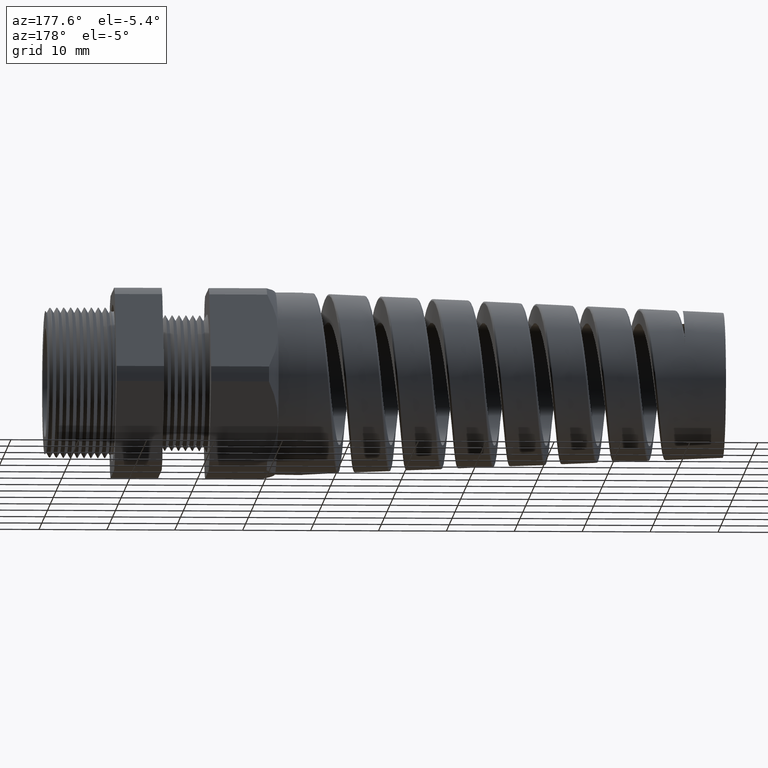
[diagram: clean part render]
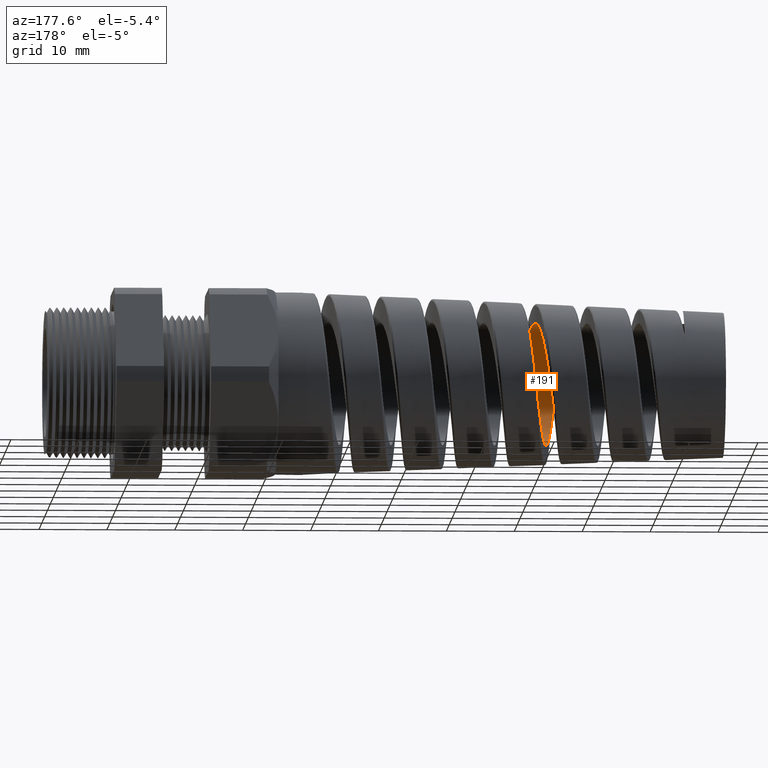
[diagram: same view with one face highlighted and labeled with its STEP entity id]
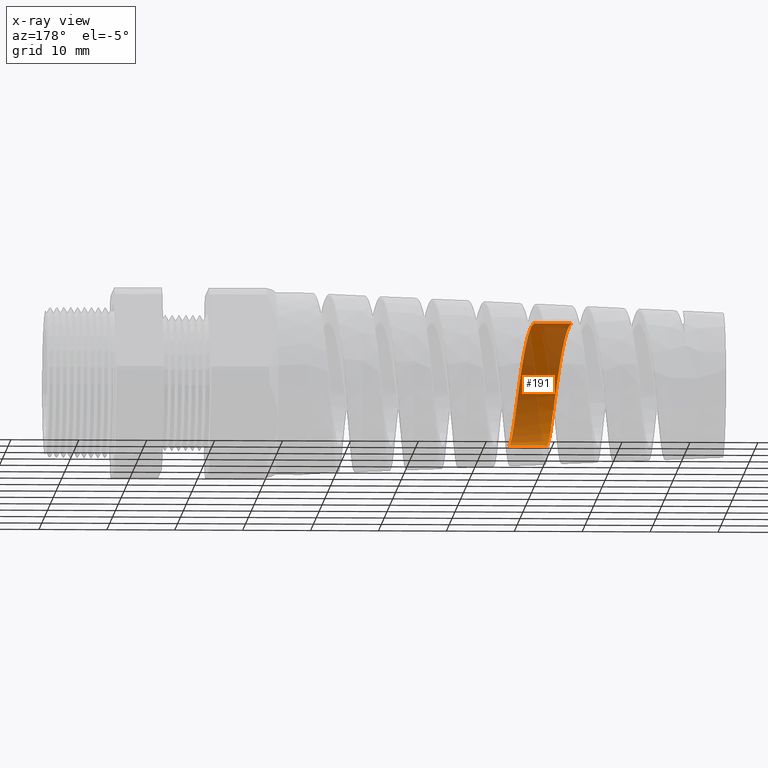
[diagram: x-ray of the same camera — body ghosted, the highlighted face saturated]
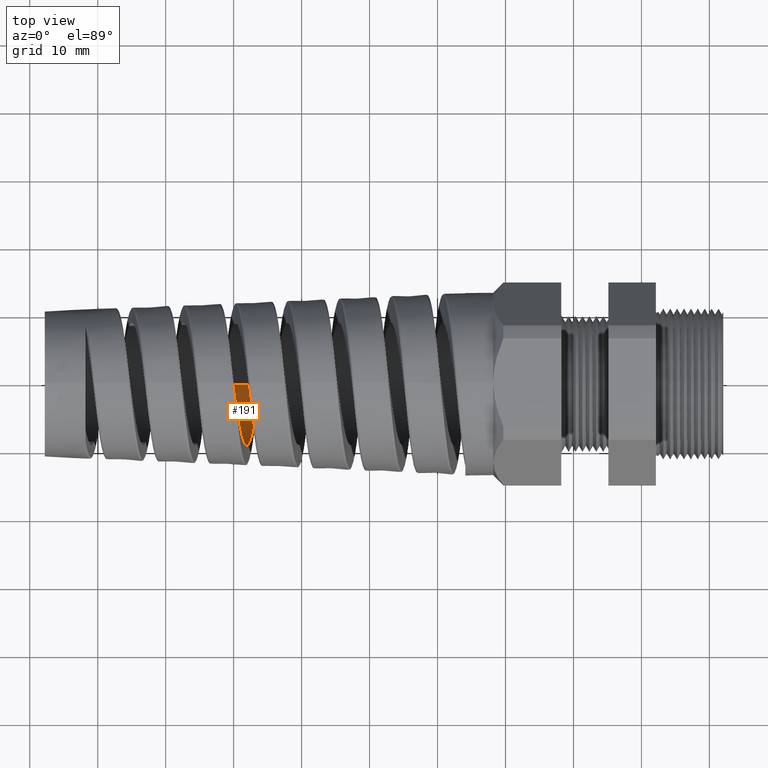
[diagram: same view with one face highlighted and labeled with its STEP entity id]
A machine part, auxiliary view. The second image highlights one B-rep face of the part: STEP entity #191.
The next image is the same camera in x-ray: the body ghosted, the highlighted face saturated — about 63% of this face is hidden behind the body in this view.
A second angle (top view) of the same face is appended — the face is thin or edge-on in the first view.
In plain terms, the highlighted cylindrical surface (partial cylindrical patch) has radius 9.0424 mm, axis along (1, 0, 0).
Its self-contained STEP definition (entity closure, byte-faithful):
#108 = EDGE_LOOP ( 'NONE', ( #109, #113, #116, #119 ) ) ;
#109 = ORIENTED_EDGE ( 'NONE', *, *, #110, .T. ) ;
#110 = EDGE_CURVE ( 'NONE', #111, #112, #1306, .T. ) ;
#111 = VERTEX_POINT ( 'NONE', #1307 ) ;
#112 = VERTEX_POINT ( 'NONE', #1305 ) ;
#113 = ORIENTED_EDGE ( 'NONE', *, *, #114, .T. ) ;
#114 = EDGE_CURVE ( 'NONE', #112, #115, #1334, .T. ) ;
#115 = VERTEX_POINT ( 'NONE', #1330 ) ;
#116 = ORIENTED_EDGE ( 'NONE', *, *, #117, .T. ) ;
#117 = EDGE_CURVE ( 'NONE', #115, #118, #1410, .T. ) ;
#118 = VERTEX_POINT ( 'NONE', #1411 ) ;
#119 = ORIENTED_EDGE ( 'NONE', *, *, #120, .F. ) ;
#120 = EDGE_CURVE ( 'NONE', #111, #118, #1441, .T. ) ;
#191 = ADVANCED_FACE ( 'NONE', ( #2035 ), #2033, .F. ) ;
#1288 = CARTESIAN_POINT ( 'NONE',  ( -2.865878385319923000, -0.2830066676051814500, -0.2172233800236530200 ) ) ;
#1289 = CARTESIAN_POINT ( 'NONE',  ( -2.862784802337007100, -0.2682974846537566300, -0.2351490093649006900 ) ) ;
#1290 = CARTESIAN_POINT ( 'NONE',  ( -2.858100982522131500, -0.2436008963558304900, -0.2598658356033796100 ) ) ;
#1291 = CARTESIAN_POINT ( 'NONE',  ( -2.856524093153812100, -0.2348779907034478100, -0.2677788872361999700 ) ) ;
#1292 = CARTESIAN_POINT ( 'NONE',  ( -2.853383558245191000, -0.2167677386200083100, -0.2826392585256234400 ) ) ;
#1293 = CARTESIAN_POINT ( 'NONE',  ( -2.851824260504471900, -0.2074106298001680300, -0.2895712623736018100 ) ) ;
#1294 = CARTESIAN_POINT ( 'NONE',  ( -2.847156549222540800, -0.1784605498097791600, -0.3089119187544660000 ) ) ;
#1295 = CARTESIAN_POINT ( 'NONE',  ( -2.844059307946899700, -0.1579969302065872300, -0.3198789223953460400 ) ) ;
#1296 = CARTESIAN_POINT ( 'NONE',  ( -2.839345516245098900, -0.1255140943001147600, -0.3333460677267697800 ) ) ;
#1297 = CARTESIAN_POINT ( 'NONE',  ( -2.837770354338129400, -0.1144367156026305600, -0.3373066413484552300 ) ) ;
#1298 = CARTESIAN_POINT ( 'NONE',  ( -2.834648988095228800, -0.09215473982740286800, -0.3440625467891505500 ) ) ;
#1299 = CARTESIAN_POINT ( 'NONE',  ( -2.833095092370364800, -0.08089808150880928300, -0.3468802431238151600 ) ) ;
#1300 = CARTESIAN_POINT ( 'NONE',  ( -2.829986602782412300, -0.05815815462563546400, -0.3514086392107963500 ) ) ;
#1301 = CARTESIAN_POINT ( 'NONE',  ( -2.828432061218223700, -0.04667488061391102100, -0.3531193474797285100 ) ) ;
#1302 = CARTESIAN_POINT ( 'NONE',  ( -2.825307539450896000, -0.02348010185575789500, -0.3554159575225558400 ) ) ;
#1303 = CARTESIAN_POINT ( 'NONE',  ( -2.823728789182552200, -0.01170299271775862200, -0.3560000000000159700 ) ) ;
#1304 = CARTESIAN_POINT ( 'NONE',  ( -2.822159956129014700, 4.852839836151481800E-013, -0.3560000000000000900 ) ) ;
#1305 = CARTESIAN_POINT ( 'NONE',  ( -2.972091208868782100, -7.629645937617727200E-013, 0.3559999999999998200 ) ) ;
#1306 = B_SPLINE_CURVE_WITH_KNOTS ( 'NONE', 3,
 ( #1304, #1303, #1302, #1301, #1300, #1299, #1298, #1297, #1296, #1295, #1294, #1293, #1292, #1291, #1290, #1289, #1288, #1366, #1365, #1364, #1363, #1362, #1361, #1360, #1359, #1358, #1357, #1356, #1355, #1354, #1353, #1352, #1351, #1350, #1349, #1348, #1347, #1346, #1345, #1344, #1343, #1342, #1341, #1340, #1339, #1338, #1337, #1336, #1335 ),
 .UNSPECIFIED., .F., .F.,
 ( 4, 2, 2, 2, 2, 2, 2, 2, 2, 2, 2, 2, 2, 1, 2, 2, 2, 2, 2, 2, 2, 2, 2, 2, 4 ),
 ( 0.2840777852845404200, 0.2849690767866405700, 0.2858603682887407800, 0.2867516597908409400, 0.2876429512929411500, 0.2894255342971414600, 0.2903168257992416700, 0.2912081173013418300, 0.2929907003055422000, 0.2938819918076423500, 0.2947732833097425600, 0.2965558663139429300, 0.2974471578160430800, 0.2983384493181432400, 0.2992297408202434500, 0.3001210323223436100, 0.3019036153265439700, 0.3036861983307443400, 0.3054687813349447100, 0.3063600728370448600, 0.3072513643391450700, 0.3090339473433453800, 0.3108165303475457500, 0.3117078218496459600, 0.3125991133517461200 ),
 .UNSPECIFIED. ) ;
#1307 = CARTESIAN_POINT ( 'NONE',  ( -2.822159956129014700, 4.852839836151481800E-013, -0.3560000000000000900 ) ) ;
#1330 = CARTESIAN_POINT ( 'NONE',  ( -2.755331627841042200, 3.409837175029362200E-013, 0.3559999999999998200 ) ) ;
#1331 = DIRECTION ( 'NONE',  ( 1.000000000000000000, 0.0000000000000000000, 0.0000000000000000000 ) ) ;
#1332 = VECTOR ( 'NONE', #1331, 39.37007874015748100 ) ;
#1333 = CARTESIAN_POINT ( 'NONE',  ( 0.09602717987635048200, 4.359742604964577000E-017, 0.3559999999999999800 ) ) ;
#1334 = LINE ( 'NONE', #1333, #1332 ) ;
#1335 = CARTESIAN_POINT ( 'NONE',  ( -2.972091208868782100, -7.629645937617727200E-013, 0.3559999999999998200 ) ) ;
#1336 = CARTESIAN_POINT ( 'NONE',  ( -2.970525152840745300, -0.01168124141202175000, 0.3559999999999753400 ) ) ;
#1337 = CARTESIAN_POINT ( 'NONE',  ( -2.968944116503309700, -0.02347459733471722900, 0.3554169174184096900 ) ) ;
#1338 = CARTESIAN_POINT ( 'NONE',  ( -2.965814709255707000, -0.04670545973800501600, 0.3531159043966914400 ) ) ;
#1339 = CARTESIAN_POINT ( 'NONE',  ( -2.964258941728634200, -0.05819831331059183800, 0.3514020581831998600 ) ) ;
#1340 = CARTESIAN_POINT ( 'NONE',  ( -2.959595789027008800, -0.09231341587968282200, 0.3446041699094373700 ) ) ;
#1341 = CARTESIAN_POINT ( 'NONE',  ( -2.956486546336027900, -0.1146206225884433700, 0.3378611015848146400 ) ) ;
#1342 = CARTESIAN_POINT ( 'NONE',  ( -2.950186963967742500, -0.1580286800207312300, 0.3198670776706663600 ) ) ;
#1343 = CARTESIAN_POINT ( 'NONE',  ( -2.947087444884256300, -0.1785052216045564800, 0.3088851482184418200 ) ) ;
#1344 = CARTESIAN_POINT ( 'NONE',  ( -2.942422707288137900, -0.2074372475588239500, 0.2895519393092096900 ) ) ;
#1345 = CARTESIAN_POINT ( 'NONE',  ( -2.940865406020641200, -0.2167820081310139800, 0.2826273681304811700 ) ) ;
#1346 = CARTESIAN_POINT ( 'NONE',  ( -2.937730788968287300, -0.2348571145896957700, 0.2677961986143194700 ) ) ;
#1347 = CARTESIAN_POINT ( 'NONE',  ( -2.936150230374905400, -0.2436004940152626500, 0.2598669793929389000 ) ) ;
#1348 = CARTESIAN_POINT ( 'NONE',  ( -2.931459263061313400, -0.2683322140440266300, 0.2351127677506923400 ) ) ;
#1349 = CARTESIAN_POINT ( 'NONE',  ( -2.928365735327072900, -0.2830368689626215900, 0.2171808167604285800 ) ) ;
#1350 = CARTESIAN_POINT ( 'NONE',  ( -2.922127371356423500, -0.3088973778632578300, 0.1784930987744197100 ) ) ;
#1351 = CARTESIAN_POINT ( 'NONE',  ( -2.918964355415452500, -0.3200659542992223000, 0.1575856324041027000 ) ) ;
#1352 = CARTESIAN_POINT ( 'NONE',  ( -2.912737216566430900, -0.3378279165455079200, 0.1146636186599489700 ) ) ;
#1353 = CARTESIAN_POINT ( 'NONE',  ( -2.909641702390816800, -0.3445783814419102800, 0.09246256943013446400 ) ) ;
#1354 = CARTESIAN_POINT ( 'NONE',  ( -2.904936136905885000, -0.3514321651738083200, 0.05803731736509156600 ) ) ;
#1355 = CARTESIAN_POINT ( 'NONE',  ( -2.903356732004803900, -0.3531595934096324900, 0.04636988393200223300 ) ) ;
#1356 = CARTESIAN_POINT ( 'NONE',  ( -2.900231373365270500, -0.3554364292209847300, 0.02316914620266131600 ) ) ;
#1357 = CARTESIAN_POINT ( 'NONE',  ( -2.897121973242576600, -0.3565649835026404900, -2.550830066267088100E-005 ) ) ;
#1358 = CARTESIAN_POINT ( 'NONE',  ( -2.894014912200638000, -0.3554336124638134400, -0.02320427457250626900 ) ) ;
#1359 = CARTESIAN_POINT ( 'NONE',  ( -2.890894124714374700, -0.3531586567001756500, -0.04637299241196394400 ) ) ;
#1360 = CARTESIAN_POINT ( 'NONE',  ( -2.889319704983560400, -0.3514382680851753600, -0.05800518322005763400 ) ) ;
#1361 = CARTESIAN_POINT ( 'NONE',  ( -2.884604350843289000, -0.3445713148247087600, -0.09250102280716600300 ) ) ;
#1362 = CARTESIAN_POINT ( 'NONE',  ( -2.881506471784186700, -0.3378097490024638500, -0.1147137128136454100 ) ) ;
#1363 = CARTESIAN_POINT ( 'NONE',  ( -2.876839657506196500, -0.3244946796705542300, -0.1468804564013004600 ) ) ;
#1364 = CARTESIAN_POINT ( 'NONE',  ( -2.875280752038986700, -0.3195237845776362500, -0.1574093010172430700 ) ) ;
#1365 = CARTESIAN_POINT ( 'NONE',  ( -2.872141016803078500, -0.3084883377037628300, -0.1780676345053247000 ) ) ;
#1366 = CARTESIAN_POINT ( 'NONE',  ( -2.870563512169979100, -0.3024288244416843400, -0.1881714612561995500 ) ) ;
#1367 = CARTESIAN_POINT ( 'NONE',  ( -2.617744064766182300, -0.09201651564152256400, -0.3441016804169604900 ) ) ;
#1368 = CARTESIAN_POINT ( 'NONE',  ( -2.620885179131395800, -0.1144208192818265400, -0.3373142180985825300 ) ) ;
#1369 = CARTESIAN_POINT ( 'NONE',  ( -2.622465586541800100, -0.1255229974138698500, -0.3333403825567192700 ) ) ;
#1370 = CARTESIAN_POINT ( 'NONE',  ( -2.627157493241159000, -0.1578235711876450600, -0.3199547694110336200 ) ) ;
#1371 = CARTESIAN_POINT ( 'NONE',  ( -2.630254136587428300, -0.1782766678096466600, -0.3090238184869429900 ) ) ;
#1372 = CARTESIAN_POINT ( 'NONE',  ( -2.634940899214454700, -0.2073295139863165800, -0.2896308776694713200 ) ) ;
#1373 = CARTESIAN_POINT ( 'NONE',  ( -2.636517835862771000, -0.2167846321346852700, -0.2826266461793834900 ) ) ;
#1374 = CARTESIAN_POINT ( 'NONE',  ( -2.639663478947947600, -0.2349065150949841400, -0.2677542287739024300 ) ) ;
#1375 = CARTESIAN_POINT ( 'NONE',  ( -2.641225078623080900, -0.2435353116310456400, -0.2599256022618669500 ) ) ;
#1376 = CARTESIAN_POINT ( 'NONE',  ( -2.645898458052778700, -0.2681601926109005700, -0.2352980620162093400 ) ) ;
#1377 = CARTESIAN_POINT ( 'NONE',  ( -2.648998164412504200, -0.2829065917316326800, -0.2173680493795665000 ) ) ;
#1378 = CARTESIAN_POINT ( 'NONE',  ( -2.653713924711260200, -0.3024435140205843900, -0.1881519943050091200 ) ) ;
#1379 = CARTESIAN_POINT ( 'NONE',  ( -2.655292248645286300, -0.3084965258542485800, -0.1780493121364286600 ) ) ;
#1380 = CARTESIAN_POINT ( 'NONE',  ( -2.658418114075567400, -0.3194750328090382200, -0.1575035473507201700 ) ) ;
#1381 = CARTESIAN_POINT ( 'NONE',  ( -2.661529693727159500, -0.3293964929967657100, -0.1365159290901289400 ) ) ;
#1382 = CARTESIAN_POINT ( 'NONE',  ( -2.664641250771733600, -0.3372310756783188900, -0.1146600957928973300 ) ) ;
#1383 = CARTESIAN_POINT ( 'NONE',  ( -2.667767643810733600, -0.3440062725137036400, -0.09236568865991169600 ) ) ;
#1384 = CARTESIAN_POINT ( 'NONE',  ( -2.669346830484311100, -0.3468753085995090500, -0.08093617911774141100 ) ) ;
#1385 = CARTESIAN_POINT ( 'NONE',  ( -2.674060828256977600, -0.3537291664372124700, -0.04647855458563764800 ) ) ;
#1386 = CARTESIAN_POINT ( 'NONE',  ( -2.677160807783179200, -0.3559898193804437200, -0.02337662677115583100 ) ) ;
#1387 = CARTESIAN_POINT ( 'NONE',  ( -2.681834577883681200, -0.3560050393308489800, 0.01145497780314318200 ) ) ;
#1388 = CARTESIAN_POINT ( 'NONE',  ( -2.683396351622584500, -0.3554435358723993500, 0.02309552674209165700 ) ) ;
#1389 = CARTESIAN_POINT ( 'NONE',  ( -2.686543099913324200, -0.3531531835757254500, 0.04643640252321656900 ) ) ;
#1390 = CARTESIAN_POINT ( 'NONE',  ( -2.688118825449101300, -0.3514253115096477900, 0.05806682511272581700 ) ) ;
#1391 = CARTESIAN_POINT ( 'NONE',  ( -2.692804647879340600, -0.3446092627983119400, 0.09231727350232700500 ) ) ;
#1392 = CARTESIAN_POINT ( 'NONE',  ( -2.695901888986320200, -0.3378854443393954400, 0.1145123041887375500 ) ) ;
#1393 = CARTESIAN_POINT ( 'NONE',  ( -2.700594653156025400, -0.3245187877258280400, 0.1468314228621382900 ) ) ;
#1394 = CARTESIAN_POINT ( 'NONE',  ( -2.702175552498482100, -0.3194797248598768000, 0.1574979653052725500 ) ) ;
#1395 = CARTESIAN_POINT ( 'NONE',  ( -2.705315366147150500, -0.3084485084086306400, 0.1781359630516376200 ) ) ;
#1396 = CARTESIAN_POINT ( 'NONE',  ( -2.706874965169155300, -0.3024618999293524100, 0.1881154360753232200 ) ) ;
#1397 = CARTESIAN_POINT ( 'NONE',  ( -2.711545459923097000, -0.2831258305385251400, 0.2170581416961835100 ) ) ;
#1398 = CARTESIAN_POINT ( 'NONE',  ( -2.714647848322449000, -0.2684131404357295000, 0.2350351242403558000 ) ) ;
#1399 = CARTESIAN_POINT ( 'NONE',  ( -2.720947634308983300, -0.2352247666135569300, 0.2682469622509221500 ) ) ;
#1400 = CARTESIAN_POINT ( 'NONE',  ( -2.724066106870506300, -0.2171579179582489600, 0.2830481424444455900 ) ) ;
#1401 = CARTESIAN_POINT ( 'NONE',  ( -2.728733965152959400, -0.1882405903682428900, 0.3023837515577160200 ) ) ;
#1402 = CARTESIAN_POINT ( 'NONE',  ( -2.730291038796329500, -0.1782808754760393000, 0.3083634630095507000 ) ) ;
#1403 = CARTESIAN_POINT ( 'NONE',  ( -2.733421855762011400, -0.1577101129054459800, 0.3193737875391420300 ) ) ;
#1404 = CARTESIAN_POINT ( 'NONE',  ( -2.735003942207437300, -0.1470402433241574400, 0.3244254013676998200 ) ) ;
#1405 = CARTESIAN_POINT ( 'NONE',  ( -2.739709703940996600, -0.1146378099134512400, 0.3378474054598160100 ) ) ;
#1406 = CARTESIAN_POINT ( 'NONE',  ( -2.742807686798751200, -0.09243301671065853900, 0.3445753310560326600 ) ) ;
#1407 = CARTESIAN_POINT ( 'NONE',  ( -2.749044447287630500, -0.04685431529961577700, 0.3536674914215491300 ) ) ;
#1408 = CARTESIAN_POINT ( 'NONE',  ( -2.752211171543881700, -0.02325701678260105200, 0.3560000000000223000 ) ) ;
#1409 = CARTESIAN_POINT ( 'NONE',  ( -2.755331627841042200, 3.409837175029362200E-013, 0.3559999999999998200 ) ) ;
#1410 = B_SPLINE_CURVE_WITH_KNOTS ( 'NONE', 3,
 ( #1409, #1408, #1407, #1406, #1405, #1404, #1403, #1402, #1401, #1400, #1399, #1398, #1397, #1396, #1395, #1394, #1393, #1392, #1391, #1390, #1389, #1388, #1387, #1386, #1385, #1384, #1383, #1382, #1381, #1380, #1379, #1378, #1377, #1376, #1375, #1374, #1373, #1372, #1371, #1370, #1369, #1368, #1367, #1445, #1444, #1443, #1442 ),
 .UNSPECIFIED., .F., .F.,
 ( 4, 2, 2, 2, 2, 2, 2, 2, 2, 2, 2, 2, 2, 2, 1, 2, 2, 2, 2, 2, 2, 2, 2, 4 ),
 ( 0.1628754808281069100, 0.1646548647988138000, 0.1664342487695207300, 0.1673239407548741700, 0.1682136327402276300, 0.1699930167109345600, 0.1717724006816414600, 0.1726620926669949200, 0.1735517846523483800, 0.1753311686230553100, 0.1762208606084087500, 0.1771105525937622100, 0.1788899365644691400, 0.1797796285498226000, 0.1806693205351760400, 0.1815590125205295000, 0.1824487045058829600, 0.1842280884765898600, 0.1851177804619433300, 0.1860074724472967600, 0.1877868564180036600, 0.1886765484033571200, 0.1895662403887105600, 0.1913456243594174600 ),
 .UNSPECIFIED. ) ;
#1411 = CARTESIAN_POINT ( 'NONE',  ( -2.605262965233127400, 5.842345059044108700E-013, -0.3559999999999999800 ) ) ;
#1438 = DIRECTION ( 'NONE',  ( 1.000000000000000000, 0.0000000000000000000, 0.0000000000000000000 ) ) ;
#1439 = VECTOR ( 'NONE', #1438, 39.37007874015748100 ) ;
#1440 = CARTESIAN_POINT ( 'NONE',  ( 0.09602717987635048200, 0.0000000000000000000, -0.3559999999999999800 ) ) ;
#1441 = LINE ( 'NONE', #1440, #1439 ) ;
#1442 = CARTESIAN_POINT ( 'NONE',  ( -2.605262965233127400, 5.842345059044108700E-013, -0.3559999999999999800 ) ) ;
#1443 = CARTESIAN_POINT ( 'NONE',  ( -2.608411869982435700, -0.02346595030713453600, -0.3560000000000384000 ) ) ;
#1444 = CARTESIAN_POINT ( 'NONE',  ( -2.611513432817147400, -0.04657854731935780200, -0.3537018889249734500 ) ) ;
#1445 = CARTESIAN_POINT ( 'NONE',  ( -2.616184147528066700, -0.08072303467712201000, -0.3469213722118963900 ) ) ;
#2029 = DIRECTION ( 'NONE',  ( 0.0000000000000000000, 0.0000000000000000000, -1.000000000000000000 ) ) ;
#2030 = DIRECTION ( 'NONE',  ( 1.000000000000000000, 0.0000000000000000000, 0.0000000000000000000 ) ) ;
#2031 = CARTESIAN_POINT ( 'NONE',  ( 0.09602717987635048200, 0.0000000000000000000, 0.0000000000000000000 ) ) ;
#2032 = AXIS2_PLACEMENT_3D ( 'NONE', #2031, #2030, #2029 ) ;
#2033 = CYLINDRICAL_SURFACE ( 'NONE', #2032, 0.3559999999999999800 ) ;
#2035 = FACE_OUTER_BOUND ( 'NONE', #108, .T. ) ;